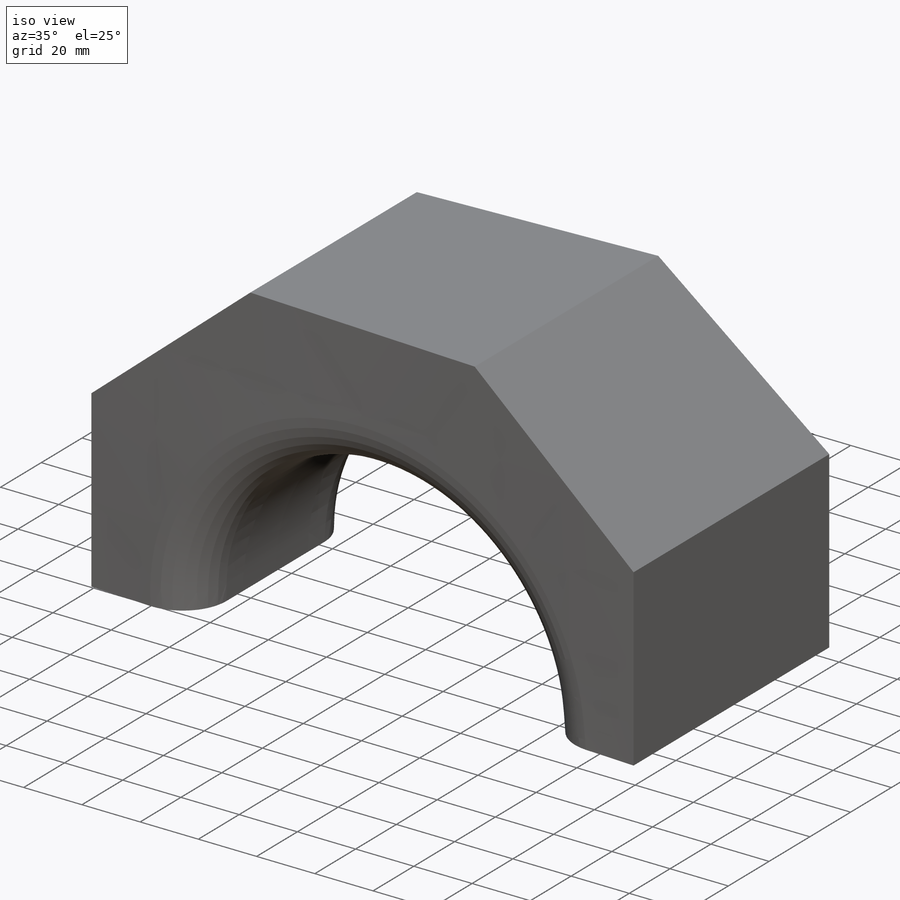
[diagram: iso view]
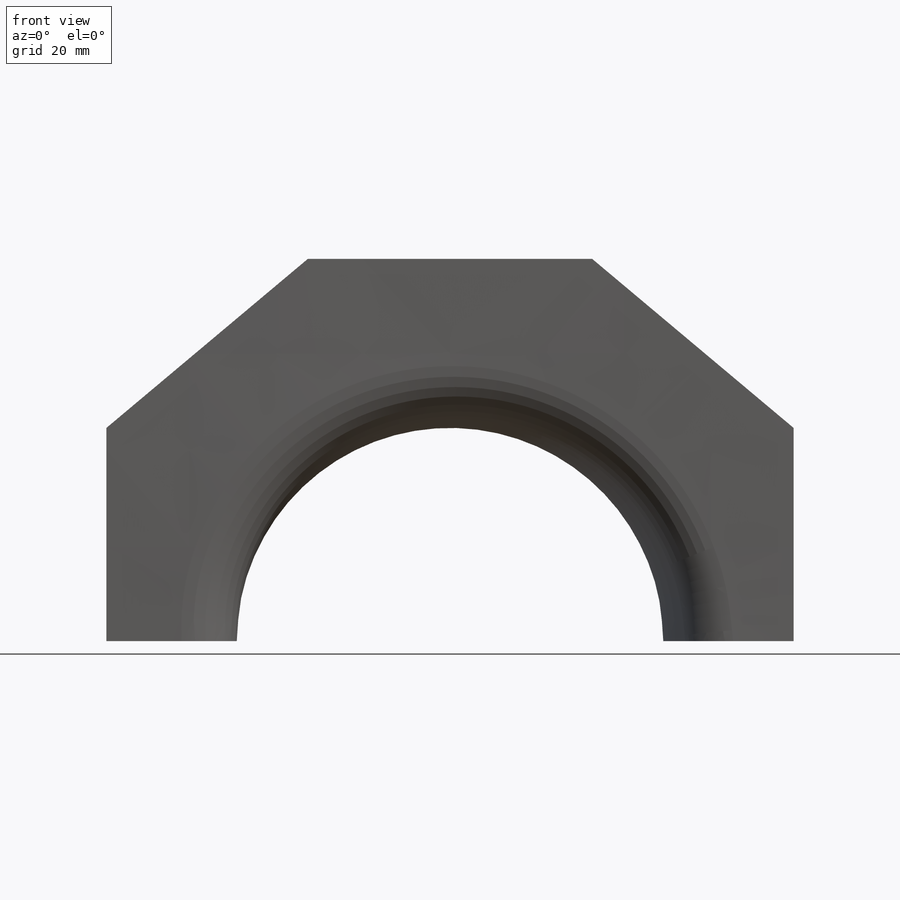
[diagram: front view]
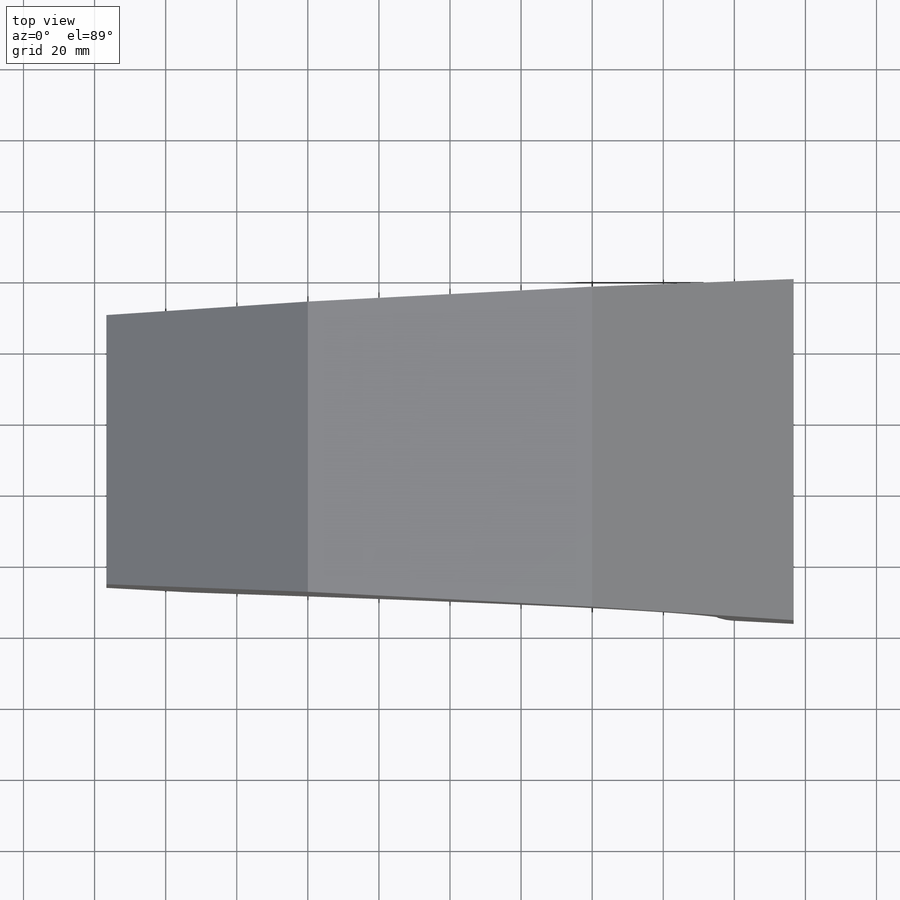
[diagram: top view]
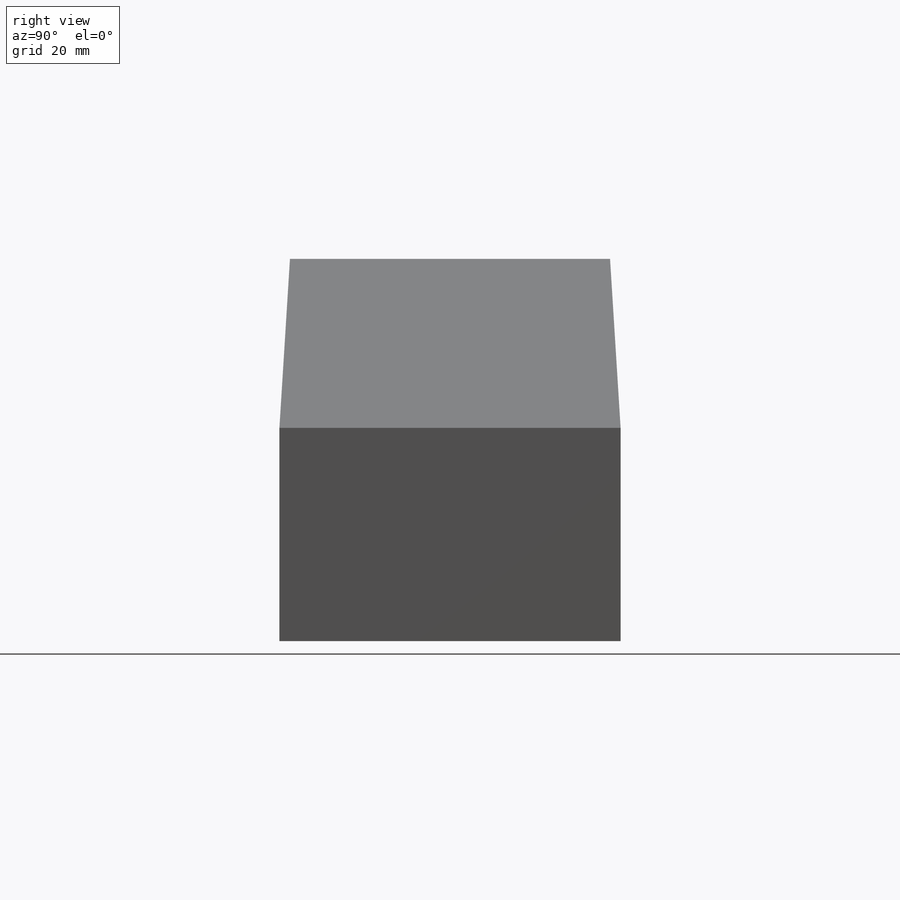
[diagram: right view]
SOLIDWORKS PART (.sldprt)
format: sldprt  version: not decoded by parser v0  size: 462,848 bytes
history: native  units: mm
features: sketch x7, extrude x6, plane x4, material x1, cut_extrude x1, fillet x1 (+9 scaffold rows collapsed)
feature tree (29):
  scaffold x9  (default folders/planes/origin — collapsed)
  material  "Material <nicht festgelegt>"
  plane  "Ebene vorne"
  plane  "Ebene oben"
  plane  "Ebene rechts"
  sketch  "Skizze1"  dims[c1.D5=70.0mm c1.D1=~36.437548mm c2.D1=40.0deg c2.D2=60.0mm c2.D3=80.0mm c2.D4=~26.666667mm]
  extrude  "Aufsatz-Linear austragen1"  Depth=96mm
  sketch  "Skizze4"  dims[c1.D1=~161.111111mm c2.D1=87.0deg]
  cut_extrude  "Schnitt-Linear austragen1"  [1 undecoded]
  sketch  "Skizze5"  dims[D1=10.0mm D2=0.1mm]
  plane  "Ebene1"
  sketch  "Skizze6"  dims[D1=70.0mm D2=10.0mm]
  sketch  "Skizze7"  dims[D1=10.0mm]
  sketch  "Skizze8"  dims[c1.D1=60.0mm c1.D2=70.0mm c1.D3=~8.210552mm c1.D4=~8.73463mm c1.D5=~87.26537mm c1.D6=~87.789448mm c2.D3=~8.210552mm c2.D4=~8.73463mm c2.D5=~87.26537mm]
  sketch  "Skizze9"  dims[D1=~0.129522mm]
  extrude  "Oberflächenausfüllung5"  [1 undecoded]
  extrude  "Oberflächenausfüllung6"  [1 undecoded]
  extrude  "Oberflächenausfüllung7"  [1 undecoded]
  extrude  "Fläche löschen4"  [1 undecoded]
  extrude  "Fläche löschen5"  [1 undecoded]
  fillet  "Verrundung1"  Radius=15mm
decode coverage: 9 of 15 modeling features carry decoded parameters
note: ~ marks probable driven/reference dimensions
note: 6 parameter values undecoded
summary: no parameter record found for 6 features
note: suppression state not decoded; provenance and decode notes live in map.json
